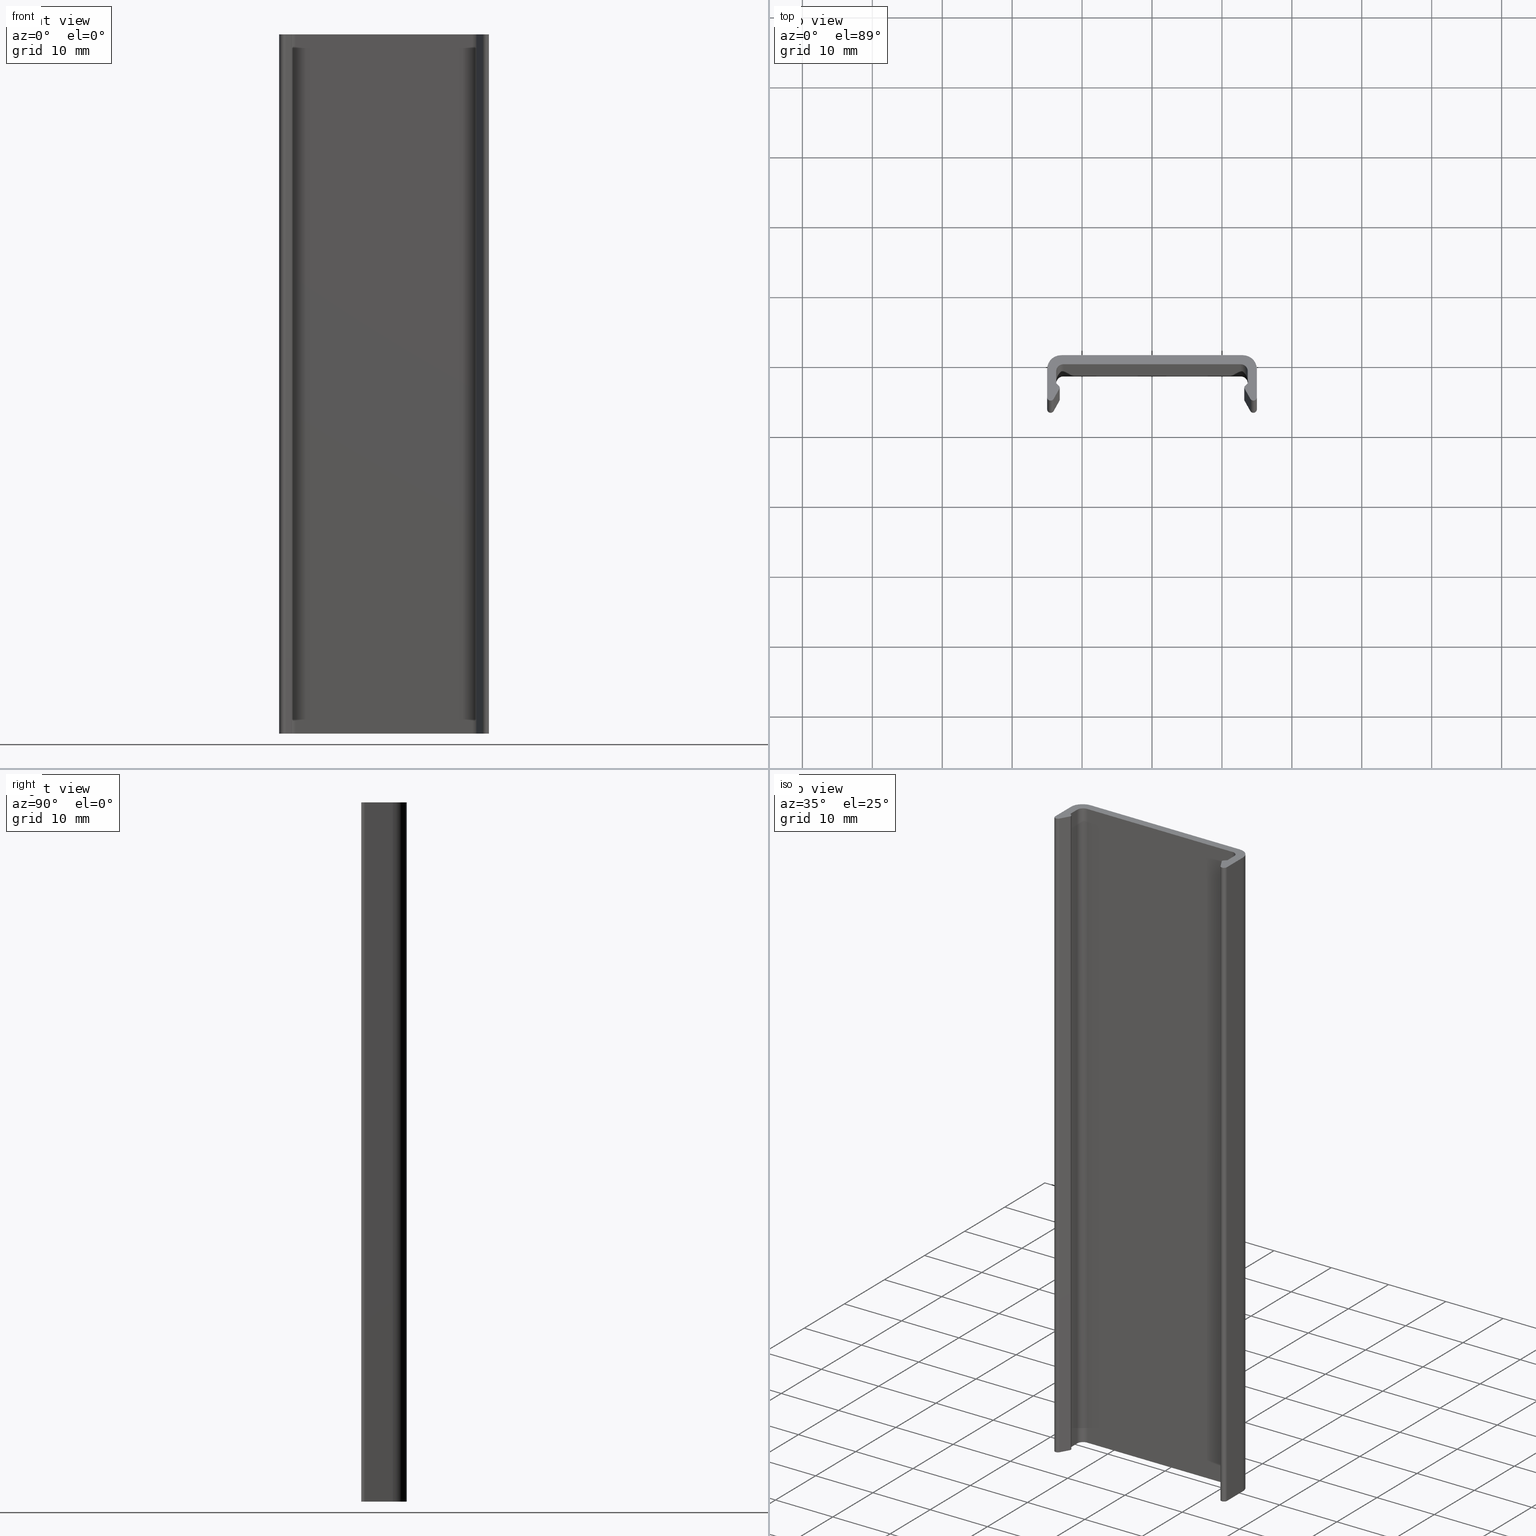
[diagram: canonical four-view strip — front | top / right | iso, engineering-drawing reading convention]
A machine part, canonical four-view strip (front | top / right | iso — engineering-drawing reading convention). The complete STEP part file that produces these views, byte-faithful:
ISO-10303-21;
HEADER;
/* Generated by software containing ST-Developer
 * from STEP Tools, Inc. (www.steptools.com) 
 */

FILE_DESCRIPTION(
/* description */ (''),
/* implementation_level */ '2;1');

FILE_NAME(
/* name */ 
'Q:\\Catalogo\\1_Profili Dierre\\Per Download Web\\Complementari\\BPRC
A0000004.stp',
/* time_stamp */ '2017-07-14T11:39:23+02:00',
/* author */ ('fzagni'),
/* organization */ (''),
/* preprocessor_version */ 'ST-DEVELOPER v16.1',
/* originating_system */ 'Autodesk Inventor 2016',
/* authorisation */ '');

FILE_SCHEMA (('AUTOMOTIVE_DESIGN { 1 0 10303 214 3 1 1 }'));
ENDSEC;

DATA;
#10=MECHANICAL_DESIGN_GEOMETRIC_PRESENTATION_REPRESENTATION('',(#13),#649);
#11=SHAPE_REPRESENTATION_RELATIONSHIP('SRR','None',#658,#12);
#12=ADVANCED_BREP_SHAPE_REPRESENTATION('',(#14),#648);
#13=STYLED_ITEM('',(#667),#14);
#14=MANIFOLD_SOLID_BREP('Solido1',#385);
#15=CIRCLE('',#389,1.);
#16=CIRCLE('',#390,1.);
#17=CIRCLE('',#394,0.299999999999869);
#18=CIRCLE('',#395,0.299999999999869);
#19=CIRCLE('',#398,0.499999999999943);
#20=CIRCLE('',#399,0.499999999999943);
#21=CIRCLE('',#402,2.00000000000017);
#22=CIRCLE('',#403,2.00000000000017);
#23=CIRCLE('',#405,2.00000000000017);
#24=CIRCLE('',#406,2.00000000000017);
#25=CIRCLE('',#409,0.499999999999943);
#26=CIRCLE('',#410,0.499999999999943);
#27=CIRCLE('',#413,0.299999999999869);
#28=CIRCLE('',#414,0.299999999999869);
#29=CIRCLE('',#418,1.);
#30=CIRCLE('',#419,1.);
#31=CYLINDRICAL_SURFACE('',#388,1.);
#32=CYLINDRICAL_SURFACE('',#393,0.299999999999869);
#33=CYLINDRICAL_SURFACE('',#397,0.499999999999943);
#34=CYLINDRICAL_SURFACE('',#401,2.00000000000017);
#35=CYLINDRICAL_SURFACE('',#404,2.00000000000017);
#36=CYLINDRICAL_SURFACE('',#408,0.499999999999943);
#37=CYLINDRICAL_SURFACE('',#412,0.299999999999869);
#38=CYLINDRICAL_SURFACE('',#417,1.);
#39=FACE_OUTER_BOUND('',#59,.T.);
#40=FACE_OUTER_BOUND('',#60,.T.);
#41=FACE_OUTER_BOUND('',#61,.T.);
#42=FACE_OUTER_BOUND('',#62,.T.);
#43=FACE_OUTER_BOUND('',#63,.T.);
#44=FACE_OUTER_BOUND('',#64,.T.);
#45=FACE_OUTER_BOUND('',#65,.T.);
#46=FACE_OUTER_BOUND('',#66,.T.);
#47=FACE_OUTER_BOUND('',#67,.T.);
#48=FACE_OUTER_BOUND('',#68,.T.);
#49=FACE_OUTER_BOUND('',#69,.T.);
#50=FACE_OUTER_BOUND('',#70,.T.);
#51=FACE_OUTER_BOUND('',#71,.T.);
#52=FACE_OUTER_BOUND('',#72,.T.);
#53=FACE_OUTER_BOUND('',#73,.T.);
#54=FACE_OUTER_BOUND('',#74,.T.);
#55=FACE_OUTER_BOUND('',#75,.T.);
#56=FACE_OUTER_BOUND('',#76,.T.);
#57=FACE_OUTER_BOUND('',#77,.T.);
#58=FACE_OUTER_BOUND('',#78,.T.);
#59=EDGE_LOOP('',(#245,#246,#247,#248));
#60=EDGE_LOOP('',(#249,#250,#251,#252));
#61=EDGE_LOOP('',(#253,#254,#255,#256));
#62=EDGE_LOOP('',(#257,#258,#259,#260));
#63=EDGE_LOOP('',(#261,#262,#263,#264));
#64=EDGE_LOOP('',(#265,#266,#267,#268));
#65=EDGE_LOOP('',(#269,#270,#271,#272));
#66=EDGE_LOOP('',(#273,#274,#275,#276));
#67=EDGE_LOOP('',(#277,#278,#279,#280));
#68=EDGE_LOOP('',(#281,#282,#283,#284));
#69=EDGE_LOOP('',(#285,#286,#287,#288));
#70=EDGE_LOOP('',(#289,#290,#291,#292));
#71=EDGE_LOOP('',(#293,#294,#295,#296));
#72=EDGE_LOOP('',(#297,#298,#299,#300));
#73=EDGE_LOOP('',(#301,#302,#303,#304));
#74=EDGE_LOOP('',(#305,#306,#307,#308));
#75=EDGE_LOOP('',(#309,#310,#311,#312));
#76=EDGE_LOOP('',(#313,#314,#315,#316,#317,#318,#319,#320,#321,#322,#323,
#324,#325,#326,#327,#328,#329,#330));
#77=EDGE_LOOP('',(#331,#332,#333,#334));
#78=EDGE_LOOP('',(#335,#336,#337,#338,#339,#340,#341,#342,#343,#344,#345,
#346,#347,#348,#349,#350,#351,#352));
#79=LINE('',#539,#117);
#80=LINE('',#541,#118);
#81=LINE('',#543,#119);
#82=LINE('',#544,#120);
#83=LINE('',#550,#121);
#84=LINE('',#553,#122);
#85=LINE('',#555,#123);
#86=LINE('',#556,#124);
#87=LINE('',#559,#125);
#88=LINE('',#561,#126);
#89=LINE('',#562,#127);
#90=LINE('',#568,#128);
#91=LINE('',#571,#129);
#92=LINE('',#573,#130);
#93=LINE('',#574,#131);
#94=LINE('',#580,#132);
#95=LINE('',#583,#133);
#96=LINE('',#585,#134);
#97=LINE('',#586,#135);
#98=LINE('',#592,#136);
#99=LINE('',#598,#137);
#100=LINE('',#601,#138);
#101=LINE('',#604,#139);
#102=LINE('',#606,#140);
#103=LINE('',#607,#141);
#104=LINE('',#613,#142);
#105=LINE('',#616,#143);
#106=LINE('',#618,#144);
#107=LINE('',#619,#145);
#108=LINE('',#625,#146);
#109=LINE('',#628,#147);
#110=LINE('',#630,#148);
#111=LINE('',#631,#149);
#112=LINE('',#634,#150);
#113=LINE('',#636,#151);
#114=LINE('',#637,#152);
#115=LINE('',#642,#153);
#116=LINE('',#644,#154);
#117=VECTOR('',#427,25.3999999999986);
#118=VECTOR('',#428,100.);
#119=VECTOR('',#429,25.3999999999986);
#120=VECTOR('',#430,100.);
#121=VECTOR('',#437,100.);
#122=VECTOR('',#440,1.70573593128281);
#123=VECTOR('',#441,1.70573593128281);
#124=VECTOR('',#442,100.);
#125=VECTOR('',#445,0.582842712478441);
#126=VECTOR('',#446,0.582842712478441);
#127=VECTOR('',#447,100.);
#128=VECTOR('',#454,100.);
#129=VECTOR('',#457,1.68430994773039);
#130=VECTOR('',#458,1.68430994773039);
#131=VECTOR('',#459,100.);
#132=VECTOR('',#466,100.);
#133=VECTOR('',#469,4.00000000000333);
#134=VECTOR('',#470,4.00000000000333);
#135=VECTOR('',#471,100.);
#136=VECTOR('',#478,100.);
#137=VECTOR('',#483,100.);
#138=VECTOR('',#486,100.);
#139=VECTOR('',#489,3.99999999998933);
#140=VECTOR('',#490,3.99999999998933);
#141=VECTOR('',#491,100.);
#142=VECTOR('',#498,100.);
#143=VECTOR('',#501,1.68430994772404);
#144=VECTOR('',#502,1.68430994772404);
#145=VECTOR('',#503,100.);
#146=VECTOR('',#510,100.);
#147=VECTOR('',#513,0.582842712475961);
#148=VECTOR('',#514,0.582842712475961);
#149=VECTOR('',#515,100.);
#150=VECTOR('',#518,1.7057359312764);
#151=VECTOR('',#519,1.7057359312764);
#152=VECTOR('',#520,100.);
#153=VECTOR('',#529,25.9999999999983);
#154=VECTOR('',#532,25.9999999999983);
#155=VERTEX_POINT('',#537);
#156=VERTEX_POINT('',#538);
#157=VERTEX_POINT('',#540);
#158=VERTEX_POINT('',#542);
#159=VERTEX_POINT('',#546);
#160=VERTEX_POINT('',#548);
#161=VERTEX_POINT('',#552);
#162=VERTEX_POINT('',#554);
#163=VERTEX_POINT('',#558);
#164=VERTEX_POINT('',#560);
#165=VERTEX_POINT('',#564);
#166=VERTEX_POINT('',#566);
#167=VERTEX_POINT('',#570);
#168=VERTEX_POINT('',#572);
#169=VERTEX_POINT('',#576);
#170=VERTEX_POINT('',#578);
#171=VERTEX_POINT('',#582);
#172=VERTEX_POINT('',#584);
#173=VERTEX_POINT('',#588);
#174=VERTEX_POINT('',#590);
#175=VERTEX_POINT('',#594);
#176=VERTEX_POINT('',#595);
#177=VERTEX_POINT('',#597);
#178=VERTEX_POINT('',#599);
#179=VERTEX_POINT('',#603);
#180=VERTEX_POINT('',#605);
#181=VERTEX_POINT('',#609);
#182=VERTEX_POINT('',#611);
#183=VERTEX_POINT('',#615);
#184=VERTEX_POINT('',#617);
#185=VERTEX_POINT('',#621);
#186=VERTEX_POINT('',#623);
#187=VERTEX_POINT('',#627);
#188=VERTEX_POINT('',#629);
#189=VERTEX_POINT('',#633);
#190=VERTEX_POINT('',#635);
#191=EDGE_CURVE('',#155,#156,#79,.T.);
#192=EDGE_CURVE('',#157,#155,#80,.T.);
#193=EDGE_CURVE('',#158,#157,#81,.T.);
#194=EDGE_CURVE('',#158,#156,#82,.T.);
#195=EDGE_CURVE('',#156,#159,#15,.T.);
#196=EDGE_CURVE('',#160,#158,#16,.T.);
#197=EDGE_CURVE('',#160,#159,#83,.T.);
#198=EDGE_CURVE('',#159,#161,#84,.T.);
#199=EDGE_CURVE('',#162,#160,#85,.T.);
#200=EDGE_CURVE('',#162,#161,#86,.T.);
#201=EDGE_CURVE('',#161,#163,#87,.T.);
#202=EDGE_CURVE('',#164,#162,#88,.T.);
#203=EDGE_CURVE('',#164,#163,#89,.T.);
#204=EDGE_CURVE('',#163,#165,#17,.T.);
#205=EDGE_CURVE('',#166,#164,#18,.T.);
#206=EDGE_CURVE('',#166,#165,#90,.T.);
#207=EDGE_CURVE('',#165,#167,#91,.T.);
#208=EDGE_CURVE('',#168,#166,#92,.T.);
#209=EDGE_CURVE('',#168,#167,#93,.T.);
#210=EDGE_CURVE('',#167,#169,#19,.T.);
#211=EDGE_CURVE('',#170,#168,#20,.T.);
#212=EDGE_CURVE('',#170,#169,#94,.T.);
#213=EDGE_CURVE('',#169,#171,#95,.T.);
#214=EDGE_CURVE('',#172,#170,#96,.T.);
#215=EDGE_CURVE('',#172,#171,#97,.T.);
#216=EDGE_CURVE('',#171,#173,#21,.T.);
#217=EDGE_CURVE('',#174,#172,#22,.T.);
#218=EDGE_CURVE('',#173,#174,#98,.T.);
#219=EDGE_CURVE('',#175,#176,#23,.T.);
#220=EDGE_CURVE('',#175,#177,#99,.T.);
#221=EDGE_CURVE('',#178,#177,#24,.T.);
#222=EDGE_CURVE('',#178,#176,#100,.T.);
#223=EDGE_CURVE('',#176,#179,#101,.T.);
#224=EDGE_CURVE('',#180,#178,#102,.T.);
#225=EDGE_CURVE('',#180,#179,#103,.T.);
#226=EDGE_CURVE('',#179,#181,#25,.T.);
#227=EDGE_CURVE('',#182,#180,#26,.T.);
#228=EDGE_CURVE('',#182,#181,#104,.T.);
#229=EDGE_CURVE('',#181,#183,#105,.T.);
#230=EDGE_CURVE('',#184,#182,#106,.T.);
#231=EDGE_CURVE('',#184,#183,#107,.T.);
#232=EDGE_CURVE('',#183,#185,#27,.T.);
#233=EDGE_CURVE('',#186,#184,#28,.T.);
#234=EDGE_CURVE('',#186,#185,#108,.T.);
#235=EDGE_CURVE('',#185,#187,#109,.T.);
#236=EDGE_CURVE('',#188,#186,#110,.T.);
#237=EDGE_CURVE('',#188,#187,#111,.T.);
#238=EDGE_CURVE('',#187,#189,#112,.T.);
#239=EDGE_CURVE('',#190,#188,#113,.T.);
#240=EDGE_CURVE('',#190,#189,#114,.T.);
#241=EDGE_CURVE('',#189,#155,#29,.T.);
#242=EDGE_CURVE('',#157,#190,#30,.T.);
#243=EDGE_CURVE('',#177,#174,#115,.T.);
#244=EDGE_CURVE('',#175,#173,#116,.T.);
#245=ORIENTED_EDGE('',*,*,#191,.F.);
#246=ORIENTED_EDGE('',*,*,#192,.F.);
#247=ORIENTED_EDGE('',*,*,#193,.F.);
#248=ORIENTED_EDGE('',*,*,#194,.T.);
#249=ORIENTED_EDGE('',*,*,#195,.F.);
#250=ORIENTED_EDGE('',*,*,#194,.F.);
#251=ORIENTED_EDGE('',*,*,#196,.F.);
#252=ORIENTED_EDGE('',*,*,#197,.T.);
#253=ORIENTED_EDGE('',*,*,#198,.F.);
#254=ORIENTED_EDGE('',*,*,#197,.F.);
#255=ORIENTED_EDGE('',*,*,#199,.F.);
#256=ORIENTED_EDGE('',*,*,#200,.T.);
#257=ORIENTED_EDGE('',*,*,#201,.F.);
#258=ORIENTED_EDGE('',*,*,#200,.F.);
#259=ORIENTED_EDGE('',*,*,#202,.F.);
#260=ORIENTED_EDGE('',*,*,#203,.T.);
#261=ORIENTED_EDGE('',*,*,#204,.F.);
#262=ORIENTED_EDGE('',*,*,#203,.F.);
#263=ORIENTED_EDGE('',*,*,#205,.F.);
#264=ORIENTED_EDGE('',*,*,#206,.T.);
#265=ORIENTED_EDGE('',*,*,#207,.F.);
#266=ORIENTED_EDGE('',*,*,#206,.F.);
#267=ORIENTED_EDGE('',*,*,#208,.F.);
#268=ORIENTED_EDGE('',*,*,#209,.T.);
#269=ORIENTED_EDGE('',*,*,#210,.F.);
#270=ORIENTED_EDGE('',*,*,#209,.F.);
#271=ORIENTED_EDGE('',*,*,#211,.F.);
#272=ORIENTED_EDGE('',*,*,#212,.T.);
#273=ORIENTED_EDGE('',*,*,#213,.F.);
#274=ORIENTED_EDGE('',*,*,#212,.F.);
#275=ORIENTED_EDGE('',*,*,#214,.F.);
#276=ORIENTED_EDGE('',*,*,#215,.T.);
#277=ORIENTED_EDGE('',*,*,#216,.F.);
#278=ORIENTED_EDGE('',*,*,#215,.F.);
#279=ORIENTED_EDGE('',*,*,#217,.F.);
#280=ORIENTED_EDGE('',*,*,#218,.F.);
#281=ORIENTED_EDGE('',*,*,#219,.F.);
#282=ORIENTED_EDGE('',*,*,#220,.T.);
#283=ORIENTED_EDGE('',*,*,#221,.F.);
#284=ORIENTED_EDGE('',*,*,#222,.T.);
#285=ORIENTED_EDGE('',*,*,#223,.F.);
#286=ORIENTED_EDGE('',*,*,#222,.F.);
#287=ORIENTED_EDGE('',*,*,#224,.F.);
#288=ORIENTED_EDGE('',*,*,#225,.T.);
#289=ORIENTED_EDGE('',*,*,#226,.F.);
#290=ORIENTED_EDGE('',*,*,#225,.F.);
#291=ORIENTED_EDGE('',*,*,#227,.F.);
#292=ORIENTED_EDGE('',*,*,#228,.T.);
#293=ORIENTED_EDGE('',*,*,#229,.F.);
#294=ORIENTED_EDGE('',*,*,#228,.F.);
#295=ORIENTED_EDGE('',*,*,#230,.F.);
#296=ORIENTED_EDGE('',*,*,#231,.T.);
#297=ORIENTED_EDGE('',*,*,#232,.F.);
#298=ORIENTED_EDGE('',*,*,#231,.F.);
#299=ORIENTED_EDGE('',*,*,#233,.F.);
#300=ORIENTED_EDGE('',*,*,#234,.T.);
#301=ORIENTED_EDGE('',*,*,#235,.F.);
#302=ORIENTED_EDGE('',*,*,#234,.F.);
#303=ORIENTED_EDGE('',*,*,#236,.F.);
#304=ORIENTED_EDGE('',*,*,#237,.T.);
#305=ORIENTED_EDGE('',*,*,#238,.F.);
#306=ORIENTED_EDGE('',*,*,#237,.F.);
#307=ORIENTED_EDGE('',*,*,#239,.F.);
#308=ORIENTED_EDGE('',*,*,#240,.T.);
#309=ORIENTED_EDGE('',*,*,#241,.F.);
#310=ORIENTED_EDGE('',*,*,#240,.F.);
#311=ORIENTED_EDGE('',*,*,#242,.F.);
#312=ORIENTED_EDGE('',*,*,#192,.T.);
#313=ORIENTED_EDGE('',*,*,#217,.T.);
#314=ORIENTED_EDGE('',*,*,#214,.T.);
#315=ORIENTED_EDGE('',*,*,#211,.T.);
#316=ORIENTED_EDGE('',*,*,#208,.T.);
#317=ORIENTED_EDGE('',*,*,#205,.T.);
#318=ORIENTED_EDGE('',*,*,#202,.T.);
#319=ORIENTED_EDGE('',*,*,#199,.T.);
#320=ORIENTED_EDGE('',*,*,#196,.T.);
#321=ORIENTED_EDGE('',*,*,#193,.T.);
#322=ORIENTED_EDGE('',*,*,#242,.T.);
#323=ORIENTED_EDGE('',*,*,#239,.T.);
#324=ORIENTED_EDGE('',*,*,#236,.T.);
#325=ORIENTED_EDGE('',*,*,#233,.T.);
#326=ORIENTED_EDGE('',*,*,#230,.T.);
#327=ORIENTED_EDGE('',*,*,#227,.T.);
#328=ORIENTED_EDGE('',*,*,#224,.T.);
#329=ORIENTED_EDGE('',*,*,#221,.T.);
#330=ORIENTED_EDGE('',*,*,#243,.T.);
#331=ORIENTED_EDGE('',*,*,#218,.T.);
#332=ORIENTED_EDGE('',*,*,#243,.F.);
#333=ORIENTED_EDGE('',*,*,#220,.F.);
#334=ORIENTED_EDGE('',*,*,#244,.T.);
#335=ORIENTED_EDGE('',*,*,#216,.T.);
#336=ORIENTED_EDGE('',*,*,#244,.F.);
#337=ORIENTED_EDGE('',*,*,#219,.T.);
#338=ORIENTED_EDGE('',*,*,#223,.T.);
#339=ORIENTED_EDGE('',*,*,#226,.T.);
#340=ORIENTED_EDGE('',*,*,#229,.T.);
#341=ORIENTED_EDGE('',*,*,#232,.T.);
#342=ORIENTED_EDGE('',*,*,#235,.T.);
#343=ORIENTED_EDGE('',*,*,#238,.T.);
#344=ORIENTED_EDGE('',*,*,#241,.T.);
#345=ORIENTED_EDGE('',*,*,#191,.T.);
#346=ORIENTED_EDGE('',*,*,#195,.T.);
#347=ORIENTED_EDGE('',*,*,#198,.T.);
#348=ORIENTED_EDGE('',*,*,#201,.T.);
#349=ORIENTED_EDGE('',*,*,#204,.T.);
#350=ORIENTED_EDGE('',*,*,#207,.T.);
#351=ORIENTED_EDGE('',*,*,#210,.T.);
#352=ORIENTED_EDGE('',*,*,#213,.T.);
#353=PLANE('',#387);
#354=PLANE('',#391);
#355=PLANE('',#392);
#356=PLANE('',#396);
#357=PLANE('',#400);
#358=PLANE('',#407);
#359=PLANE('',#411);
#360=PLANE('',#415);
#361=PLANE('',#416);
#362=PLANE('',#420);
#363=PLANE('',#421);
#364=PLANE('',#422);
#365=ADVANCED_FACE('',(#39),#353,.F.);
#366=ADVANCED_FACE('',(#40),#31,.F.);
#367=ADVANCED_FACE('',(#41),#354,.F.);
#368=ADVANCED_FACE('',(#42),#355,.F.);
#369=ADVANCED_FACE('',(#43),#32,.T.);
#370=ADVANCED_FACE('',(#44),#356,.F.);
#371=ADVANCED_FACE('',(#45),#33,.T.);
#372=ADVANCED_FACE('',(#46),#357,.F.);
#373=ADVANCED_FACE('',(#47),#34,.T.);
#374=ADVANCED_FACE('',(#48),#35,.T.);
#375=ADVANCED_FACE('',(#49),#358,.F.);
#376=ADVANCED_FACE('',(#50),#36,.T.);
#377=ADVANCED_FACE('',(#51),#359,.F.);
#378=ADVANCED_FACE('',(#52),#37,.T.);
#379=ADVANCED_FACE('',(#53),#360,.F.);
#380=ADVANCED_FACE('',(#54),#361,.F.);
#381=ADVANCED_FACE('',(#55),#38,.F.);
#382=ADVANCED_FACE('',(#56),#362,.F.);
#383=ADVANCED_FACE('',(#57),#363,.T.);
#384=ADVANCED_FACE('',(#58),#364,.T.);
#385=CLOSED_SHELL('',(#365,#366,#367,#368,#369,#370,#371,#372,#373,#374,
#375,#376,#377,#378,#379,#380,#381,#382,#383,#384));
#386=AXIS2_PLACEMENT_3D('placement',#535,#423,#424);
#387=AXIS2_PLACEMENT_3D('',#536,#425,#426);
#388=AXIS2_PLACEMENT_3D('',#545,#431,#432);
#389=AXIS2_PLACEMENT_3D('',#547,#433,#434);
#390=AXIS2_PLACEMENT_3D('',#549,#435,#436);
#391=AXIS2_PLACEMENT_3D('',#551,#438,#439);
#392=AXIS2_PLACEMENT_3D('',#557,#443,#444);
#393=AXIS2_PLACEMENT_3D('',#563,#448,#449);
#394=AXIS2_PLACEMENT_3D('',#565,#450,#451);
#395=AXIS2_PLACEMENT_3D('',#567,#452,#453);
#396=AXIS2_PLACEMENT_3D('',#569,#455,#456);
#397=AXIS2_PLACEMENT_3D('',#575,#460,#461);
#398=AXIS2_PLACEMENT_3D('',#577,#462,#463);
#399=AXIS2_PLACEMENT_3D('',#579,#464,#465);
#400=AXIS2_PLACEMENT_3D('',#581,#467,#468);
#401=AXIS2_PLACEMENT_3D('',#587,#472,#473);
#402=AXIS2_PLACEMENT_3D('',#589,#474,#475);
#403=AXIS2_PLACEMENT_3D('',#591,#476,#477);
#404=AXIS2_PLACEMENT_3D('',#593,#479,#480);
#405=AXIS2_PLACEMENT_3D('',#596,#481,#482);
#406=AXIS2_PLACEMENT_3D('',#600,#484,#485);
#407=AXIS2_PLACEMENT_3D('',#602,#487,#488);
#408=AXIS2_PLACEMENT_3D('',#608,#492,#493);
#409=AXIS2_PLACEMENT_3D('',#610,#494,#495);
#410=AXIS2_PLACEMENT_3D('',#612,#496,#497);
#411=AXIS2_PLACEMENT_3D('',#614,#499,#500);
#412=AXIS2_PLACEMENT_3D('',#620,#504,#505);
#413=AXIS2_PLACEMENT_3D('',#622,#506,#507);
#414=AXIS2_PLACEMENT_3D('',#624,#508,#509);
#415=AXIS2_PLACEMENT_3D('',#626,#511,#512);
#416=AXIS2_PLACEMENT_3D('',#632,#516,#517);
#417=AXIS2_PLACEMENT_3D('',#638,#521,#522);
#418=AXIS2_PLACEMENT_3D('',#639,#523,#524);
#419=AXIS2_PLACEMENT_3D('',#640,#525,#526);
#420=AXIS2_PLACEMENT_3D('',#641,#527,#528);
#421=AXIS2_PLACEMENT_3D('',#643,#530,#531);
#422=AXIS2_PLACEMENT_3D('',#645,#533,#534);
#423=DIRECTION('axis',(0.,0.,1.));
#424=DIRECTION('refdir',(1.,0.,0.));
#425=DIRECTION('center_axis',(4.37095678986306E-17,1.,0.));
#426=DIRECTION('ref_axis',(-1.,4.44089209850063E-17,0.));
#427=DIRECTION('',(1.,-4.37095678986306E-17,0.));
#428=DIRECTION('',(0.,0.,1.));
#429=DIRECTION('',(-1.,4.37095678986306E-17,0.));
#430=DIRECTION('',(0.,0.,1.));
#431=DIRECTION('center_axis',(0.,0.,1.));
#432=DIRECTION('ref_axis',(1.,0.,0.));
#433=DIRECTION('center_axis',(0.,0.,-1.));
#434=DIRECTION('ref_axis',(1.,0.,0.));
#435=DIRECTION('center_axis',(0.,0.,1.));
#436=DIRECTION('ref_axis',(1.,0.,0.));
#437=DIRECTION('',(0.,0.,1.));
#438=DIRECTION('center_axis',(1.,0.,0.));
#439=DIRECTION('ref_axis',(0.,1.,0.));
#440=DIRECTION('',(0.,-1.,0.));
#441=DIRECTION('',(0.,1.,0.));
#442=DIRECTION('',(0.,0.,1.));
#443=DIRECTION('center_axis',(0.707106781186268,-0.707106781186828,0.));
#444=DIRECTION('ref_axis',(0.707106781186827,0.707106781186268,0.));
#445=DIRECTION('',(-0.707106781186827,-0.707106781186267,0.));
#446=DIRECTION('',(0.707106781186827,0.707106781186267,0.));
#447=DIRECTION('',(0.,0.,1.));
#448=DIRECTION('center_axis',(0.,0.,1.));
#449=DIRECTION('ref_axis',(0.707106781186275,-0.70710678118682,0.));
#450=DIRECTION('center_axis',(0.,0.,1.));
#451=DIRECTION('ref_axis',(0.707106781186275,-0.70710678118682,0.));
#452=DIRECTION('center_axis',(0.,0.,-1.));
#453=DIRECTION('ref_axis',(0.707106781186275,-0.70710678118682,0.));
#454=DIRECTION('',(0.,0.,1.));
#455=DIRECTION('center_axis',(0.871599509326478,0.490218619946084,0.));
#456=DIRECTION('ref_axis',(-0.490218619946084,0.871599509326478,0.));
#457=DIRECTION('',(0.490218619946084,-0.871599509326478,0.));
#458=DIRECTION('',(-0.490218619946084,0.871599509326478,0.));
#459=DIRECTION('',(0.,0.,1.));
#460=DIRECTION('center_axis',(0.,0.,1.));
#461=DIRECTION('ref_axis',(0.871599509326479,0.490218619946083,0.));
#462=DIRECTION('center_axis',(0.,0.,1.));
#463=DIRECTION('ref_axis',(0.871599509326479,0.490218619946083,0.));
#464=DIRECTION('center_axis',(0.,0.,-1.));
#465=DIRECTION('ref_axis',(0.871599509326479,0.490218619946083,0.));
#466=DIRECTION('',(0.,0.,1.));
#467=DIRECTION('center_axis',(-1.,-5.55111512312116E-16,0.));
#468=DIRECTION('ref_axis',(5.32907051820075E-16,-1.,0.));
#469=DIRECTION('',(-5.55111512312116E-16,1.,0.));
#470=DIRECTION('',(5.55111512312116E-16,-1.,0.));
#471=DIRECTION('',(0.,0.,1.));
#472=DIRECTION('center_axis',(0.,0.,1.));
#473=DIRECTION('ref_axis',(-1.,1.11022302462506E-15,0.));
#474=DIRECTION('center_axis',(0.,0.,1.));
#475=DIRECTION('ref_axis',(-1.,1.11022302462506E-15,0.));
#476=DIRECTION('center_axis',(0.,0.,-1.));
#477=DIRECTION('ref_axis',(-1.,1.11022302462506E-15,0.));
#478=DIRECTION('',(0.,0.,-1.));
#479=DIRECTION('center_axis',(0.,0.,1.));
#480=DIRECTION('ref_axis',(0.,-1.,0.));
#481=DIRECTION('center_axis',(0.,0.,1.));
#482=DIRECTION('ref_axis',(0.,-1.,0.));
#483=DIRECTION('',(0.,0.,-1.));
#484=DIRECTION('center_axis',(0.,0.,-1.));
#485=DIRECTION('ref_axis',(0.,-1.,0.));
#486=DIRECTION('',(0.,0.,1.));
#487=DIRECTION('center_axis',(1.,0.,0.));
#488=DIRECTION('ref_axis',(0.,1.,0.));
#489=DIRECTION('',(0.,-1.,0.));
#490=DIRECTION('',(0.,1.,0.));
#491=DIRECTION('',(0.,0.,1.));
#492=DIRECTION('center_axis',(0.,0.,1.));
#493=DIRECTION('ref_axis',(1.,-4.44089209850113E-15,0.));
#494=DIRECTION('center_axis',(0.,0.,1.));
#495=DIRECTION('ref_axis',(1.,-4.44089209850113E-15,0.));
#496=DIRECTION('center_axis',(0.,0.,-1.));
#497=DIRECTION('ref_axis',(1.,-4.44089209850113E-15,0.));
#498=DIRECTION('',(0.,0.,1.));
#499=DIRECTION('center_axis',(-0.871599509326244,0.4902186199465,0.));
#500=DIRECTION('ref_axis',(-0.4902186199465,-0.871599509326244,0.));
#501=DIRECTION('',(0.4902186199465,0.871599509326244,0.));
#502=DIRECTION('',(-0.4902186199465,-0.871599509326244,0.));
#503=DIRECTION('',(0.,0.,1.));
#504=DIRECTION('center_axis',(0.,0.,1.));
#505=DIRECTION('ref_axis',(-0.871599509326245,0.490218619946498,0.));
#506=DIRECTION('center_axis',(0.,0.,1.));
#507=DIRECTION('ref_axis',(-0.871599509326245,0.490218619946498,0.));
#508=DIRECTION('center_axis',(0.,0.,-1.));
#509=DIRECTION('ref_axis',(-0.871599509326245,0.490218619946498,0.));
#510=DIRECTION('',(0.,0.,1.));
#511=DIRECTION('center_axis',(-0.707106781186829,-0.707106781186266,0.));
#512=DIRECTION('ref_axis',(0.707106781186266,-0.707106781186829,0.));
#513=DIRECTION('',(-0.707106781186266,0.707106781186829,0.));
#514=DIRECTION('',(0.707106781186266,-0.707106781186829,0.));
#515=DIRECTION('',(0.,0.,1.));
#516=DIRECTION('center_axis',(-1.,-6.50876260661505E-15,0.));
#517=DIRECTION('ref_axis',(6.57252030578093E-15,-1.,0.));
#518=DIRECTION('',(-6.50876260661505E-15,1.,0.));
#519=DIRECTION('',(6.50876260661505E-15,-1.,0.));
#520=DIRECTION('',(0.,0.,1.));
#521=DIRECTION('center_axis',(0.,0.,1.));
#522=DIRECTION('ref_axis',(0.,1.,0.));
#523=DIRECTION('center_axis',(0.,0.,-1.));
#524=DIRECTION('ref_axis',(0.,1.,0.));
#525=DIRECTION('center_axis',(0.,0.,1.));
#526=DIRECTION('ref_axis',(0.,1.,0.));
#527=DIRECTION('center_axis',(0.,0.,1.));
#528=DIRECTION('ref_axis',(1.,0.,0.));
#529=DIRECTION('',(1.,4.33257765707378E-16,0.));
#530=DIRECTION('center_axis',(-4.33257765707378E-16,1.,0.));
#531=DIRECTION('ref_axis',(-1.,-4.33257765707378E-16,0.));
#532=DIRECTION('',(1.,4.33257765707378E-16,0.));
#533=DIRECTION('center_axis',(0.,0.,1.));
#534=DIRECTION('ref_axis',(1.,0.,0.));
#535=CARTESIAN_POINT('',(0.,0.,0.));
#536=CARTESIAN_POINT('Origin',(12.6999999999992,-1.29999999999998,0.));
#537=CARTESIAN_POINT('',(-12.6999999999994,-1.29999999999998,100.));
#538=CARTESIAN_POINT('',(12.6999999999992,-1.29999999999998,100.));
#539=CARTESIAN_POINT('',(6.3499999999996,-1.29999999999998,100.));
#540=CARTESIAN_POINT('',(-12.6999999999994,-1.29999999999998,0.));
#541=CARTESIAN_POINT('',(-12.6999999999994,-1.29999999999998,0.));
#542=CARTESIAN_POINT('',(12.6999999999992,-1.29999999999998,0.));
#543=CARTESIAN_POINT('',(6.3499999999996,-1.29999999999998,0.));
#544=CARTESIAN_POINT('',(12.6999999999992,-1.29999999999998,0.));
#545=CARTESIAN_POINT('Origin',(12.6999999999992,-2.29999999999998,0.));
#546=CARTESIAN_POINT('',(13.6999999999992,-2.29999999999998,100.));
#547=CARTESIAN_POINT('Origin',(12.6999999999992,-2.29999999999998,100.));
#548=CARTESIAN_POINT('',(13.6999999999992,-2.29999999999998,0.));
#549=CARTESIAN_POINT('Origin',(12.6999999999992,-2.29999999999998,0.));
#550=CARTESIAN_POINT('',(13.6999999999992,-2.29999999999998,0.));
#551=CARTESIAN_POINT('Origin',(13.6999999999992,-4.00573593128279,0.));
#552=CARTESIAN_POINT('',(13.6999999999992,-4.00573593128279,100.));
#553=CARTESIAN_POINT('',(13.6999999999992,-4.75286796564139,100.));
#554=CARTESIAN_POINT('',(13.6999999999992,-4.00573593128279,0.));
#555=CARTESIAN_POINT('',(13.6999999999992,-4.75286796564139,0.));
#556=CARTESIAN_POINT('',(13.6999999999992,-4.00573593128279,0.));
#557=CARTESIAN_POINT('Origin',(13.2878679656404,-4.41786796564129,0.));
#558=CARTESIAN_POINT('',(13.2878679656404,-4.41786796564129,100.));
#559=CARTESIAN_POINT('',(9.69536796563798,-8.01036796564084,100.));
#560=CARTESIAN_POINT('',(13.2878679656404,-4.41786796564129,0.));
#561=CARTESIAN_POINT('',(9.69536796563798,-8.01036796564084,0.));
#562=CARTESIAN_POINT('',(13.2878679656404,-4.41786796564129,0.));
#563=CARTESIAN_POINT('Origin',(13.4999999999962,-4.62999999999724,0.));
#564=CARTESIAN_POINT('',(13.2385201471983,-4.777065585981,100.));
#565=CARTESIAN_POINT('Origin',(13.4999999999962,-4.62999999999724,100.));
#566=CARTESIAN_POINT('',(13.2385201471983,-4.777065585981,0.));
#567=CARTESIAN_POINT('Origin',(13.4999999999962,-4.62999999999724,0.));
#568=CARTESIAN_POINT('',(13.2385201471983,-4.777065585981,0.));
#569=CARTESIAN_POINT('Origin',(14.0642002453362,-6.24510930997651,0.));
#570=CARTESIAN_POINT('',(14.0642002453362,-6.24510930997651,100.));
#571=CARTESIAN_POINT('',(12.2151030269552,-2.95744914640488,100.));
#572=CARTESIAN_POINT('',(14.0642002453362,-6.24510930997651,0.));
#573=CARTESIAN_POINT('',(12.2151030269552,-2.95744914640488,0.));
#574=CARTESIAN_POINT('',(14.0642002453362,-6.24510930997651,0.));
#575=CARTESIAN_POINT('Origin',(14.4999999999994,-6.0000000000035,0.));
#576=CARTESIAN_POINT('',(14.9999999999993,-6.0000000000035,100.));
#577=CARTESIAN_POINT('Origin',(14.4999999999994,-6.0000000000035,100.));
#578=CARTESIAN_POINT('',(14.9999999999993,-6.0000000000035,0.));
#579=CARTESIAN_POINT('Origin',(14.4999999999994,-6.0000000000035,0.));
#580=CARTESIAN_POINT('',(14.9999999999993,-6.0000000000035,0.));
#581=CARTESIAN_POINT('Origin',(14.9999999999993,-2.00000000000017,0.));
#582=CARTESIAN_POINT('',(14.9999999999993,-2.00000000000017,100.));
#583=CARTESIAN_POINT('',(14.9999999999993,-3.75000000000008,100.));
#584=CARTESIAN_POINT('',(14.9999999999993,-2.00000000000017,0.));
#585=CARTESIAN_POINT('',(14.9999999999993,-3.75000000000008,0.));
#586=CARTESIAN_POINT('',(14.9999999999993,-2.00000000000017,0.));
#587=CARTESIAN_POINT('Origin',(12.9999999999991,-2.00000000000017,0.));
#588=CARTESIAN_POINT('',(12.9999999999991,0.,100.));
#589=CARTESIAN_POINT('Origin',(12.9999999999991,-2.00000000000017,100.));
#590=CARTESIAN_POINT('',(12.9999999999991,0.,0.));
#591=CARTESIAN_POINT('Origin',(12.9999999999991,-2.00000000000017,0.));
#592=CARTESIAN_POINT('',(12.9999999999991,9.99200722162641E-15,0.));
#593=CARTESIAN_POINT('Origin',(-12.9999999999991,-2.00000000000017,0.));
#594=CARTESIAN_POINT('',(-12.9999999999991,0.,100.));
#595=CARTESIAN_POINT('',(-14.9999999999993,-2.00000000000017,100.));
#596=CARTESIAN_POINT('Origin',(-12.9999999999991,-2.00000000000017,100.));
#597=CARTESIAN_POINT('',(-12.9999999999991,0.,0.));
#598=CARTESIAN_POINT('',(-12.9999999999991,-1.11022302462516E-15,0.));
#599=CARTESIAN_POINT('',(-14.9999999999993,-2.00000000000017,0.));
#600=CARTESIAN_POINT('Origin',(-12.9999999999991,-2.00000000000017,0.));
#601=CARTESIAN_POINT('',(-14.9999999999993,-2.00000000000017,0.));
#602=CARTESIAN_POINT('Origin',(-14.9999999999993,-5.9999999999895,0.));
#603=CARTESIAN_POINT('',(-14.9999999999993,-5.9999999999895,100.));
#604=CARTESIAN_POINT('',(-14.9999999999993,-5.74999999999475,100.));
#605=CARTESIAN_POINT('',(-14.9999999999993,-5.9999999999895,0.));
#606=CARTESIAN_POINT('',(-14.9999999999993,-5.74999999999475,0.));
#607=CARTESIAN_POINT('',(-14.9999999999993,-5.9999999999895,0.));
#608=CARTESIAN_POINT('Origin',(-14.4999999999994,-5.9999999999895,0.));
#609=CARTESIAN_POINT('',(-14.0642002453363,-6.24510930996272,100.));
#610=CARTESIAN_POINT('Origin',(-14.4999999999994,-5.9999999999895,100.));
#611=CARTESIAN_POINT('',(-14.0642002453363,-6.24510930996272,0.));
#612=CARTESIAN_POINT('Origin',(-14.4999999999994,-5.9999999999895,0.));
#613=CARTESIAN_POINT('',(-14.0642002453363,-6.24510930996272,0.));
#614=CARTESIAN_POINT('Origin',(-13.2385201472009,-4.77706558597314,0.));
#615=CARTESIAN_POINT('',(-13.2385201472009,-4.77706558597314,100.));
#616=CARTESIAN_POINT('',(-11.8022629778876,-2.22342728439992,100.));
#617=CARTESIAN_POINT('',(-13.2385201472009,-4.77706558597314,0.));
#618=CARTESIAN_POINT('',(-11.8022629778876,-2.22342728439992,0.));
#619=CARTESIAN_POINT('',(-13.2385201472009,-4.77706558597314,0.));
#620=CARTESIAN_POINT('Origin',(-13.4999999999986,-4.62999999998925,0.));
#621=CARTESIAN_POINT('',(-13.2878679656427,-4.41786796563346,100.));
#622=CARTESIAN_POINT('Origin',(-13.4999999999986,-4.62999999998925,100.));
#623=CARTESIAN_POINT('',(-13.2878679656427,-4.41786796563346,0.));
#624=CARTESIAN_POINT('Origin',(-13.4999999999986,-4.62999999998925,0.));
#625=CARTESIAN_POINT('',(-13.2878679656427,-4.41786796563346,0.));
#626=CARTESIAN_POINT('Origin',(-13.6999999999994,-4.00573593127639,0.));
#627=CARTESIAN_POINT('',(-13.6999999999994,-4.00573593127639,100.));
#628=CARTESIAN_POINT('',(-9.90143398282139,-7.80430194845744,100.));
#629=CARTESIAN_POINT('',(-13.6999999999994,-4.00573593127639,0.));
#630=CARTESIAN_POINT('',(-9.90143398282139,-7.80430194845744,0.));
#631=CARTESIAN_POINT('',(-13.6999999999994,-4.00573593127639,0.));
#632=CARTESIAN_POINT('Origin',(-13.6999999999994,-2.29999999999998,0.));
#633=CARTESIAN_POINT('',(-13.6999999999994,-2.29999999999998,100.));
#634=CARTESIAN_POINT('',(-13.6999999999994,-3.90000000000003,100.));
#635=CARTESIAN_POINT('',(-13.6999999999994,-2.29999999999998,0.));
#636=CARTESIAN_POINT('',(-13.6999999999994,-3.90000000000003,0.));
#637=CARTESIAN_POINT('',(-13.6999999999994,-2.29999999999998,0.));
#638=CARTESIAN_POINT('Origin',(-12.6999999999994,-2.29999999999998,0.));
#639=CARTESIAN_POINT('Origin',(-12.6999999999994,-2.29999999999998,100.));
#640=CARTESIAN_POINT('Origin',(-12.6999999999994,-2.29999999999998,0.));
#641=CARTESIAN_POINT('Origin',(4.44089209850063E-15,-5.49999999999999,0.));
#642=CARTESIAN_POINT('',(10.25,8.88178419700125E-15,0.));
#643=CARTESIAN_POINT('Origin',(20.5,1.33226762955019E-14,0.));
#644=CARTESIAN_POINT('',(10.25,8.88178419700125E-15,100.));
#645=CARTESIAN_POINT('Origin',(4.44089209850063E-15,-5.49999999999999,100.));
#646=UNCERTAINTY_MEASURE_WITH_UNIT(LENGTH_MEASURE(0.01),#650,
'DISTANCE_ACCURACY_VALUE',
'Maximum model space distance between geometric entities at asserted c
onnectivities');
#647=UNCERTAINTY_MEASURE_WITH_UNIT(LENGTH_MEASURE(1.E-6),#650,
'DISTANCE_ACCURACY_VALUE',
'Maximum model space distance between geometric entities at asserted c
onnectivities');
#648=(
GEOMETRIC_REPRESENTATION_CONTEXT(3)
GLOBAL_UNCERTAINTY_ASSIGNED_CONTEXT((#646))
GLOBAL_UNIT_ASSIGNED_CONTEXT((#650,#653,#651))
REPRESENTATION_CONTEXT('','3D')
);
#649=(
GEOMETRIC_REPRESENTATION_CONTEXT(3)
GLOBAL_UNCERTAINTY_ASSIGNED_CONTEXT((#647))
GLOBAL_UNIT_ASSIGNED_CONTEXT((#650,#653,#651))
REPRESENTATION_CONTEXT('','3D')
);
#650=(
LENGTH_UNIT()
NAMED_UNIT(*)
SI_UNIT(.MILLI.,.METRE.)
);
#651=(
NAMED_UNIT(*)
SI_UNIT($,.STERADIAN.)
SOLID_ANGLE_UNIT()
);
#652=DIMENSIONAL_EXPONENTS(0.,0.,0.,0.,0.,0.,0.);
#653=(
CONVERSION_BASED_UNIT('degree',#655)
NAMED_UNIT(#652)
PLANE_ANGLE_UNIT()
);
#654=(
NAMED_UNIT(*)
PLANE_ANGLE_UNIT()
SI_UNIT($,.RADIAN.)
);
#655=PLANE_ANGLE_MEASURE_WITH_UNIT(PLANE_ANGLE_MEASURE(0.01745329252),#654);
#656=SHAPE_DEFINITION_REPRESENTATION(#657,#658);
#657=PRODUCT_DEFINITION_SHAPE('',$,#660);
#658=SHAPE_REPRESENTATION('',(#386),#648);
#659=PRODUCT_DEFINITION_CONTEXT('part definition',#664,'design');
#660=PRODUCT_DEFINITION('BPRCA0000004','BPRCA0000004',#661,#659);
#661=PRODUCT_DEFINITION_FORMATION('',$,#666);
#662=PRODUCT_RELATED_PRODUCT_CATEGORY('BPRCA0000004','BPRCA0000004',(#666));
#663=APPLICATION_PROTOCOL_DEFINITION('international standard',
'automotive_design',2009,#664);
#664=APPLICATION_CONTEXT(
'Core Data for Automotive Mechanical Design Process');
#665=PRODUCT_CONTEXT('part definition',#664,'mechanical');
#666=PRODUCT('BPRCA0000004','BPRCA0000004',$,(#665));
#667=PRESENTATION_STYLE_ASSIGNMENT((#668));
#668=SURFACE_STYLE_USAGE(.BOTH.,#669);
#669=SURFACE_SIDE_STYLE('',(#670));
#670=SURFACE_STYLE_FILL_AREA(#671);
#671=FILL_AREA_STYLE('',(#672));
#672=FILL_AREA_STYLE_COLOUR('',#673);
#673=COLOUR_RGB('',0.698039215686274,0.698039215686274,0.698039215686274);
ENDSEC;
END-ISO-10303-21;
